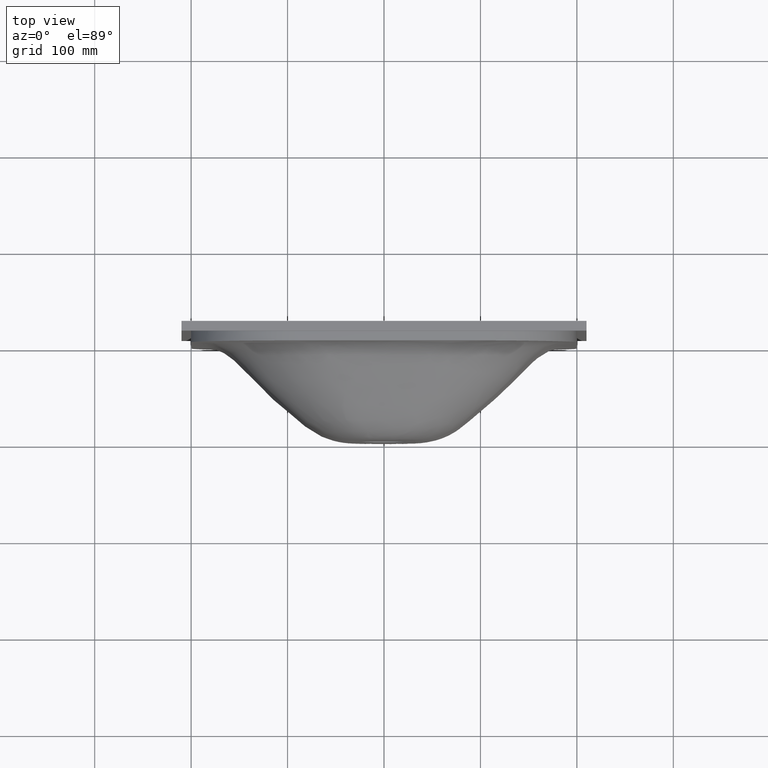
[diagram: clean part render]
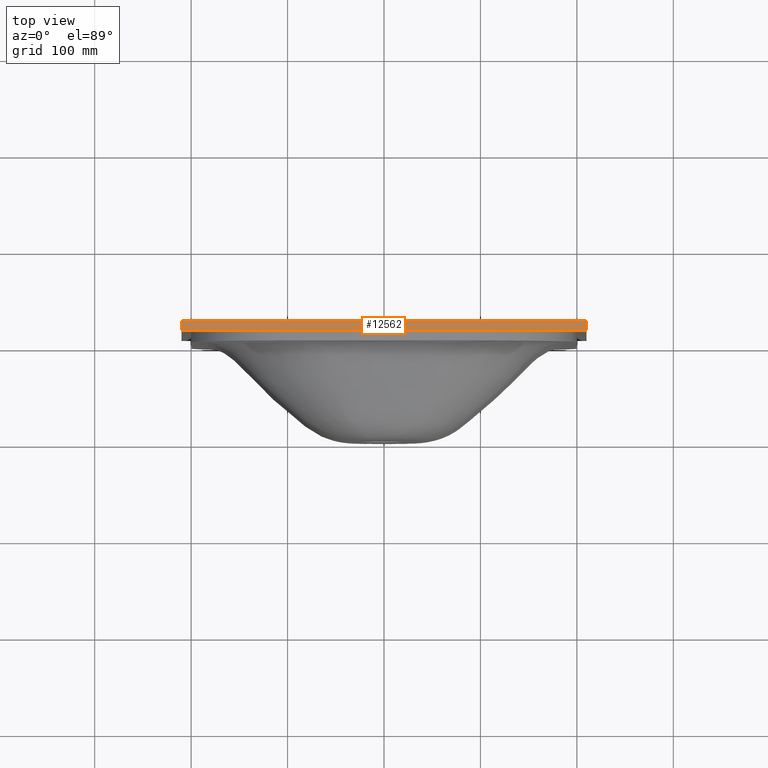
[diagram: same view with one face highlighted and labeled with its STEP entity id]
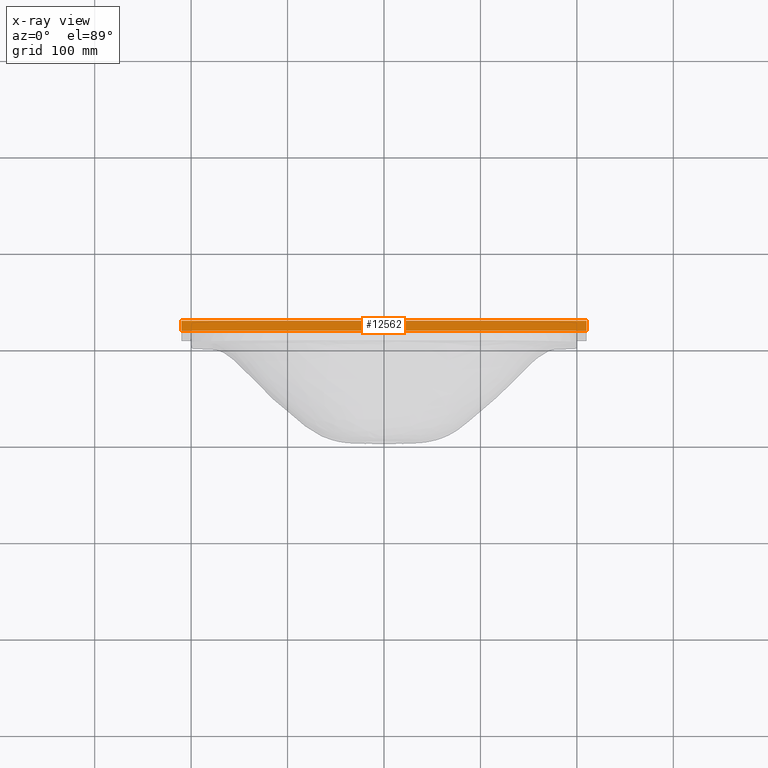
[diagram: x-ray of the same camera — body ghosted, the highlighted face saturated]
A machine part, top view. The second image highlights one B-rep face of the part: STEP entity #12562.
The next image is the same camera in x-ray: the body ghosted, the highlighted face saturated — about 0% of this face is hidden behind the body in this view.
In plain terms, the highlighted planar face has unit normal (0, -0, 1).
Its self-contained STEP definition (entity closure, byte-faithful):
#260 = CARTESIAN_POINT ( 'NONE',  ( -210.0000000000000300, 120.0000000000000000, 310.0000000000000000 ) ) ;
#651 = CARTESIAN_POINT ( 'NONE',  ( 210.0000000000000000, 110.0000000000000000, 310.0000000000000000 ) ) ;
#1068 = CARTESIAN_POINT ( 'NONE',  ( -210.0000000000000300, 110.0000000000000000, 310.0000000000000000 ) ) ;
#1511 = EDGE_CURVE ( 'NONE', #4549, #7588, #9333, .T. ) ;
#2207 = EDGE_CURVE ( 'NONE', #7528, #4549, #7912, .T. ) ;
#3433 = ORIENTED_EDGE ( 'NONE', *, *, #1511, .F. ) ;
#4021 = EDGE_CURVE ( 'NONE', #7528, #12830, #7039, .T. ) ;
#4207 = VECTOR ( 'NONE', #10225, 1000.000000000000000 ) ;
#4296 = AXIS2_PLACEMENT_3D ( 'NONE', #8571, #8548, #8531 ) ;
#4517 = LINE ( 'NONE', #10243, #4207 ) ;
#4549 = VERTEX_POINT ( 'NONE', #260 ) ;
#5038 = CARTESIAN_POINT ( 'NONE',  ( -210.0000000000000300, 110.0000000000000000, 310.0000000000000000 ) ) ;
#6355 = ORIENTED_EDGE ( 'NONE', *, *, #4021, .T. ) ;
#6645 = FACE_OUTER_BOUND ( 'NONE', #7690, .T. ) ;
#6785 = VECTOR ( 'NONE', #13537, 1000.000000000000000 ) ;
#6813 = VECTOR ( 'NONE', #10022, 1000.000000000000000 ) ;
#7039 = LINE ( 'NONE', #651, #7926 ) ;
#7481 = ORIENTED_EDGE ( 'NONE', *, *, #10432, .T. ) ;
#7528 = VERTEX_POINT ( 'NONE', #1068 ) ;
#7588 = VERTEX_POINT ( 'NONE', #11138 ) ;
#7690 = EDGE_LOOP ( 'NONE', ( #3433, #8934, #6355, #7481 ) ) ;
#7912 = LINE ( 'NONE', #5038, #6813 ) ;
#7926 = VECTOR ( 'NONE', #8717, 1000.000000000000000 ) ;
#8437 = CARTESIAN_POINT ( 'NONE',  ( 210.0000000000000000, 110.0000000000000000, 310.0000000000000000 ) ) ;
#8531 = DIRECTION ( 'NONE',  ( 1.000000000000000000, 0.0000000000000000000, -0.0000000000000000000 ) ) ;
#8548 = DIRECTION ( 'NONE',  ( 0.0000000000000000000, -0.0000000000000000000, 1.000000000000000000 ) ) ;
#8571 = CARTESIAN_POINT ( 'NONE',  ( 210.0000000000000000, 110.0000000000000000, 310.0000000000000000 ) ) ;
#8604 = PLANE ( 'NONE',  #4296 ) ;
#8717 = DIRECTION ( 'NONE',  ( 1.000000000000000000, -0.0000000000000000000, -0.0000000000000000000 ) ) ;
#8934 = ORIENTED_EDGE ( 'NONE', *, *, #2207, .F. ) ;
#9333 = LINE ( 'NONE', #9742, #6785 ) ;
#9742 = CARTESIAN_POINT ( 'NONE',  ( 210.0000000000000000, 120.0000000000000000, 310.0000000000000000 ) ) ;
#10022 = DIRECTION ( 'NONE',  ( 0.0000000000000000000, 1.000000000000000000, 0.0000000000000000000 ) ) ;
#10225 = DIRECTION ( 'NONE',  ( 0.0000000000000000000, 1.000000000000000000, 0.0000000000000000000 ) ) ;
#10243 = CARTESIAN_POINT ( 'NONE',  ( 210.0000000000000000, 110.0000000000000000, 310.0000000000000000 ) ) ;
#10432 = EDGE_CURVE ( 'NONE', #12830, #7588, #4517, .T. ) ;
#11138 = CARTESIAN_POINT ( 'NONE',  ( 210.0000000000000000, 120.0000000000000000, 310.0000000000000000 ) ) ;
#12562 = ADVANCED_FACE ( 'NONE', ( #6645 ), #8604, .T. ) ;
#12830 = VERTEX_POINT ( 'NONE', #8437 ) ;
#13537 = DIRECTION ( 'NONE',  ( 1.000000000000000000, -0.0000000000000000000, -0.0000000000000000000 ) ) ;